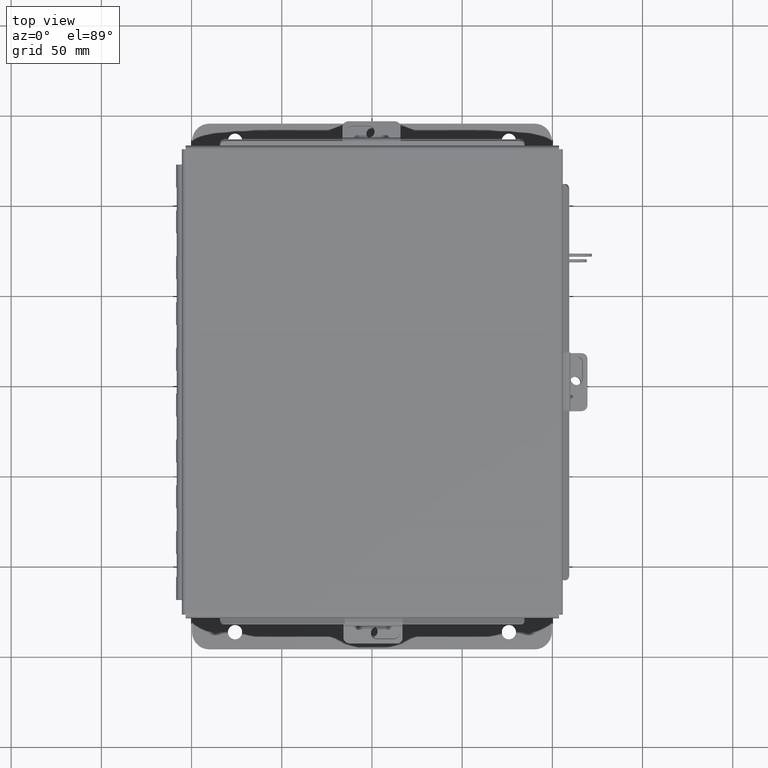
[diagram: clean part render]
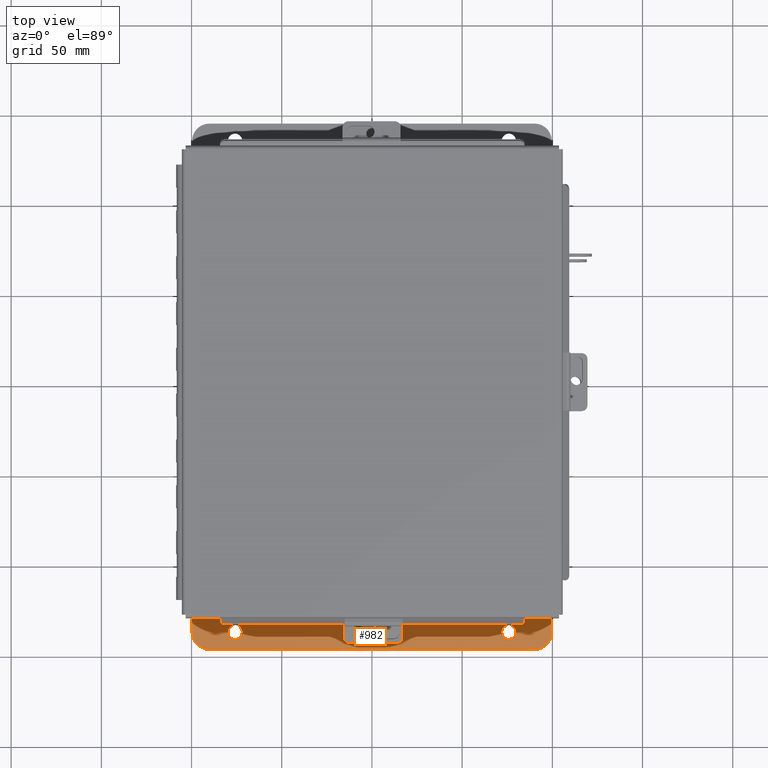
[diagram: same view with one face highlighted and labeled with its STEP entity id]
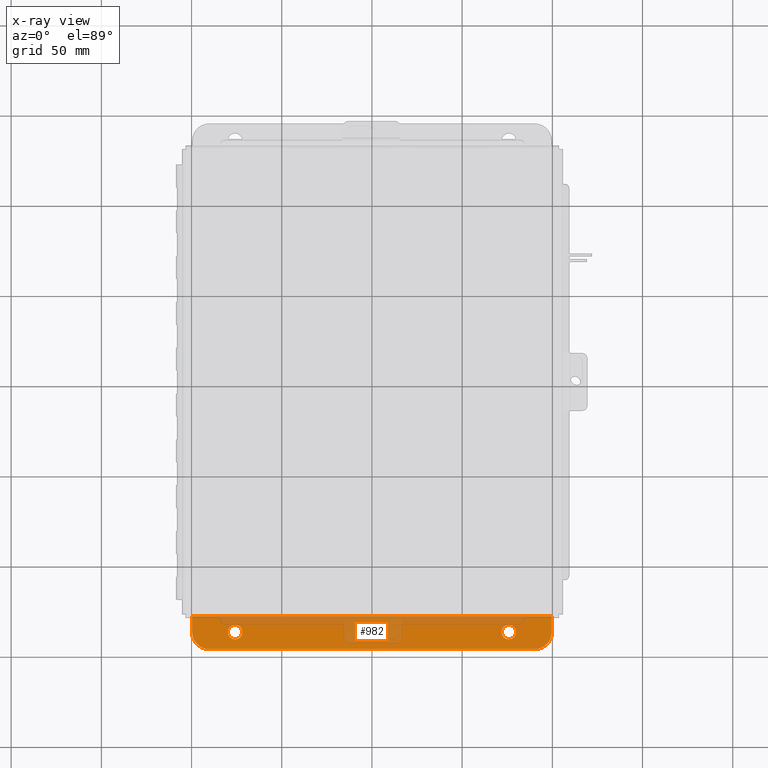
[diagram: x-ray of the same camera — body ghosted, the highlighted face saturated]
A machine part, top view. The second image highlights one B-rep face of the part: STEP entity #982.
The next image is the same camera in x-ray: the body ghosted, the highlighted face saturated — about 33% of this face is hidden behind the body in this view.
In plain terms, the highlighted planar face has unit normal (0, -0, 1).
Its self-contained STEP definition (entity closure, byte-faithful):
#282 = DIRECTION ( 'NONE',  ( 0.0000000000000000000, -1.000000000000000000, 3.502369222646487400E-015 ) ) ;
#364 = CARTESIAN_POINT ( 'NONE',  ( -3.925300000000000900, 0.01299999999999901400, -3.112299999999999800 ) ) ;
#448 = ORIENTED_EDGE ( 'NONE', *, *, #12172, .T. ) ;
#632 = DIRECTION ( 'NONE',  ( -1.000000000000000000, -4.910036603141682400E-031, 0.0000000000000000000 ) ) ;
#982 = ADVANCED_FACE ( 'NONE', ( #14709, #4518, #14290 ), #11714, .T. ) ;
#1033 = DIRECTION ( 'NONE',  ( -4.919856193148104900E-031, -1.000000000000000000, 3.702694488566362300E-015 ) ) ;
#1050 = CIRCLE ( 'NONE', #14073, 0.1560000000000001700 ) ;
#1058 = EDGE_LOOP ( 'NONE', ( #8051, #13417 ) ) ;
#1075 = VERTEX_POINT ( 'NONE', #11297 ) ;
#1126 = CARTESIAN_POINT ( 'NONE',  ( 2.987799999999998700, 0.3628000000000008400, -3.112300000000001200 ) ) ;
#1651 = AXIS2_PLACEMENT_3D ( 'NONE', #7441, #16357, #8726 ) ;
#1658 = CARTESIAN_POINT ( 'NONE',  ( 3.925299999999998700, 0.01300000000000010700, -3.112299999999999800 ) ) ;
#1825 = DIRECTION ( 'NONE',  ( -4.919856193148104900E-031, -1.000000000000000000, 3.702694488566362300E-015 ) ) ;
#2106 = DIRECTION ( 'NONE',  ( 0.0000000000000000000, 3.702694488566362300E-015, 1.000000000000000000 ) ) ;
#2408 = DIRECTION ( 'NONE',  ( 0.0000000000000000000, -1.000000000000000000, 3.502369222646487400E-015 ) ) ;
#2585 = DIRECTION ( 'NONE',  ( 0.0000000000000000000, 3.702694488566362300E-015, 1.000000000000000000 ) ) ;
#2619 = CIRCLE ( 'NONE', #11193, 0.3750000000000000600 ) ;
#2861 = CARTESIAN_POINT ( 'NONE',  ( -3.925300000000000900, 0.3627999999999997300, -3.112300000000001200 ) ) ;
#3389 = CARTESIAN_POINT ( 'NONE',  ( 3.925299999999998700, 0.7378000000000011200, -3.112300000000003000 ) ) ;
#4105 = AXIS2_PLACEMENT_3D ( 'NONE', #1126, #10027, #2408 ) ;
#4365 = EDGE_CURVE ( 'NONE', #16434, #15278, #7351, .T. ) ;
#4462 = ORIENTED_EDGE ( 'NONE', *, *, #4365, .F. ) ;
#4518 = FACE_BOUND ( 'NONE', #8938, .T. ) ;
#4773 = EDGE_CURVE ( 'NONE', #15278, #11862, #15515, .T. ) ;
#4814 = DIRECTION ( 'NONE',  ( -0.0000000000000000000, -3.702694488566362300E-015, -1.000000000000000000 ) ) ;
#4844 = AXIS2_PLACEMENT_3D ( 'NONE', #10206, #2585, #11495 ) ;
#5835 = CARTESIAN_POINT ( 'NONE',  ( -2.987800000000000900, 0.5187999999999999300, -3.112300000000001600 ) ) ;
#6697 = VERTEX_POINT ( 'NONE', #15818 ) ;
#6838 = CARTESIAN_POINT ( 'NONE',  ( 3.925299999999998700, 0.0000000000000000000, -3.112299999999999800 ) ) ;
#6855 = CIRCLE ( 'NONE', #4105, 0.1560000000000001700 ) ;
#7351 = LINE ( 'NONE', #13991, #14108 ) ;
#7441 = CARTESIAN_POINT ( 'NONE',  ( -2.987800000000000900, 0.3627999999999997300, -3.112300000000001200 ) ) ;
#7871 = VECTOR ( 'NONE', #13554, 39.37007874015748100 ) ;
#7928 = DIRECTION ( 'NONE',  ( -0.0000000000000000000, -3.702694488566362300E-015, -1.000000000000000000 ) ) ;
#7983 = DIRECTION ( 'NONE',  ( 4.919856193148104900E-031, 1.000000000000000000, -3.702694488566362300E-015 ) ) ;
#8051 = ORIENTED_EDGE ( 'NONE', *, *, #16332, .T. ) ;
#8079 = CARTESIAN_POINT ( 'NONE',  ( -3.550300000000000500, 0.7378000000000000100, -3.112300000000003000 ) ) ;
#8433 = EDGE_LOOP ( 'NONE', ( #10634, #8828, #10673, #4462, #11470, #448 ) ) ;
#8627 = CIRCLE ( 'NONE', #4844, 0.3750000000000000600 ) ;
#8726 = DIRECTION ( 'NONE',  ( 0.0000000000000000000, -1.000000000000000000, 3.502369222646487400E-015 ) ) ;
#8828 = ORIENTED_EDGE ( 'NONE', *, *, #13373, .T. ) ;
#8938 = EDGE_LOOP ( 'NONE', ( #14007, #12675 ) ) ;
#8942 = EDGE_CURVE ( 'NONE', #12825, #11122, #10085, .T. ) ;
#9137 = LINE ( 'NONE', #6838, #15918 ) ;
#9315 = EDGE_CURVE ( 'NONE', #11122, #12825, #6855, .T. ) ;
#9740 = CARTESIAN_POINT ( 'NONE',  ( 3.550299999999998700, 0.3628000000000008400, -3.112300000000001200 ) ) ;
#9868 = EDGE_CURVE ( 'NONE', #13011, #6697, #14271, .T. ) ;
#10027 = DIRECTION ( 'NONE',  ( -0.0000000000000000000, -3.702694488566362300E-015, -1.000000000000000000 ) ) ;
#10085 = CIRCLE ( 'NONE', #13268, 0.1560000000000001700 ) ;
#10206 = CARTESIAN_POINT ( 'NONE',  ( -3.550300000000000500, 0.3627999999999997300, -3.112300000000001200 ) ) ;
#10249 = CARTESIAN_POINT ( 'NONE',  ( 2.987799999999998700, 0.2068000000000006800, -3.112300000000000700 ) ) ;
#10531 = CIRCLE ( 'NONE', #1651, 0.1560000000000001700 ) ;
#10634 = ORIENTED_EDGE ( 'NONE', *, *, #9868, .F. ) ;
#10673 = ORIENTED_EDGE ( 'NONE', *, *, #4773, .F. ) ;
#11019 = DIRECTION ( 'NONE',  ( 0.0000000000000000000, -1.000000000000000000, 4.370956789862820400E-015 ) ) ;
#11122 = VERTEX_POINT ( 'NONE', #10249 ) ;
#11193 = AXIS2_PLACEMENT_3D ( 'NONE', #9740, #2106, #11019 ) ;
#11297 = CARTESIAN_POINT ( 'NONE',  ( 3.925299999999998700, 0.3628000000000008400, -3.112300000000001200 ) ) ;
#11470 = ORIENTED_EDGE ( 'NONE', *, *, #13642, .F. ) ;
#11495 = DIRECTION ( 'NONE',  ( 0.0000000000000000000, -1.000000000000000000, 4.370956789862820400E-015 ) ) ;
#11714 = PLANE ( 'NONE',  #15149 ) ;
#11792 = EDGE_CURVE ( 'NONE', #12142, #13239, #1050, .T. ) ;
#11862 = VERTEX_POINT ( 'NONE', #2861 ) ;
#12137 = VECTOR ( 'NONE', #7983, 39.37007874015748100 ) ;
#12142 = VERTEX_POINT ( 'NONE', #13458 ) ;
#12172 = EDGE_CURVE ( 'NONE', #1075, #6697, #2619, .T. ) ;
#12459 = CARTESIAN_POINT ( 'NONE',  ( 2.987799999999998700, 0.3628000000000008400, -3.112300000000001200 ) ) ;
#12675 = ORIENTED_EDGE ( 'NONE', *, *, #9315, .T. ) ;
#12825 = VERTEX_POINT ( 'NONE', #13669 ) ;
#13011 = VERTEX_POINT ( 'NONE', #8079 ) ;
#13239 = VERTEX_POINT ( 'NONE', #5835 ) ;
#13268 = AXIS2_PLACEMENT_3D ( 'NONE', #12459, #4814, #13739 ) ;
#13373 = EDGE_CURVE ( 'NONE', #13011, #11862, #8627, .T. ) ;
#13417 = ORIENTED_EDGE ( 'NONE', *, *, #11792, .T. ) ;
#13458 = CARTESIAN_POINT ( 'NONE',  ( -2.987800000000000900, 0.2067999999999996000, -3.112300000000000700 ) ) ;
#13554 = DIRECTION ( 'NONE',  ( 1.000000000000000000, 4.910036603141682400E-031, -0.0000000000000000000 ) ) ;
#13560 = CARTESIAN_POINT ( 'NONE',  ( -2.035385365534024800E-024, -1.092739197465705300E-014, -3.112299999999999800 ) ) ;
#13642 = EDGE_CURVE ( 'NONE', #1075, #16434, #9137, .T. ) ;
#13669 = CARTESIAN_POINT ( 'NONE',  ( 2.987799999999998700, 0.5188000000000010400, -3.112300000000001600 ) ) ;
#13739 = DIRECTION ( 'NONE',  ( 0.0000000000000000000, -1.000000000000000000, 3.502369222646487400E-015 ) ) ;
#13991 = CARTESIAN_POINT ( 'NONE',  ( 3.925299999999998700, 0.01300000000000010700, -3.112299999999999800 ) ) ;
#14007 = ORIENTED_EDGE ( 'NONE', *, *, #8942, .T. ) ;
#14073 = AXIS2_PLACEMENT_3D ( 'NONE', #15559, #7928, #282 ) ;
#14108 = VECTOR ( 'NONE', #632, 39.37007874015748100 ) ;
#14271 = LINE ( 'NONE', #3389, #7871 ) ;
#14290 = FACE_OUTER_BOUND ( 'NONE', #8433, .T. ) ;
#14709 = FACE_BOUND ( 'NONE', #1058, .T. ) ;
#14807 = DIRECTION ( 'NONE',  ( 0.0000000000000000000, 3.702694488566362300E-015, 1.000000000000000000 ) ) ;
#15149 = AXIS2_PLACEMENT_3D ( 'NONE', #13560, #14807, #1033 ) ;
#15162 = CARTESIAN_POINT ( 'NONE',  ( -3.925300000000000900, 0.7377999999999989000, -3.112300000000003000 ) ) ;
#15278 = VERTEX_POINT ( 'NONE', #364 ) ;
#15515 = LINE ( 'NONE', #15162, #12137 ) ;
#15559 = CARTESIAN_POINT ( 'NONE',  ( -2.987800000000000900, 0.3627999999999997300, -3.112300000000001200 ) ) ;
#15818 = CARTESIAN_POINT ( 'NONE',  ( 3.550299999999998700, 0.7378000000000000100, -3.112300000000003000 ) ) ;
#15918 = VECTOR ( 'NONE', #1825, 39.37007874015748100 ) ;
#16332 = EDGE_CURVE ( 'NONE', #13239, #12142, #10531, .T. ) ;
#16357 = DIRECTION ( 'NONE',  ( -0.0000000000000000000, -3.702694488566362300E-015, -1.000000000000000000 ) ) ;
#16434 = VERTEX_POINT ( 'NONE', #1658 ) ;